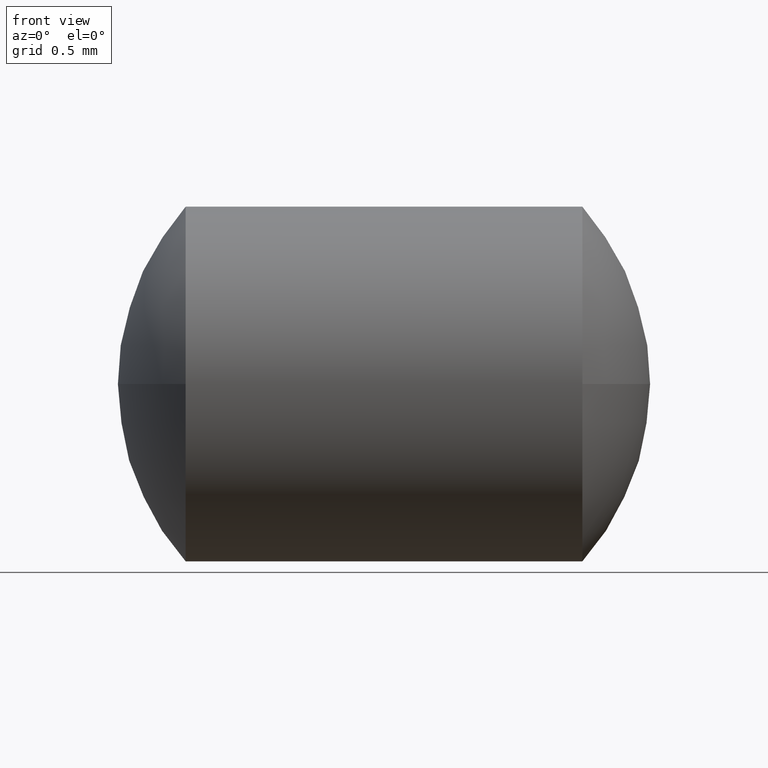
[diagram: clean part render]
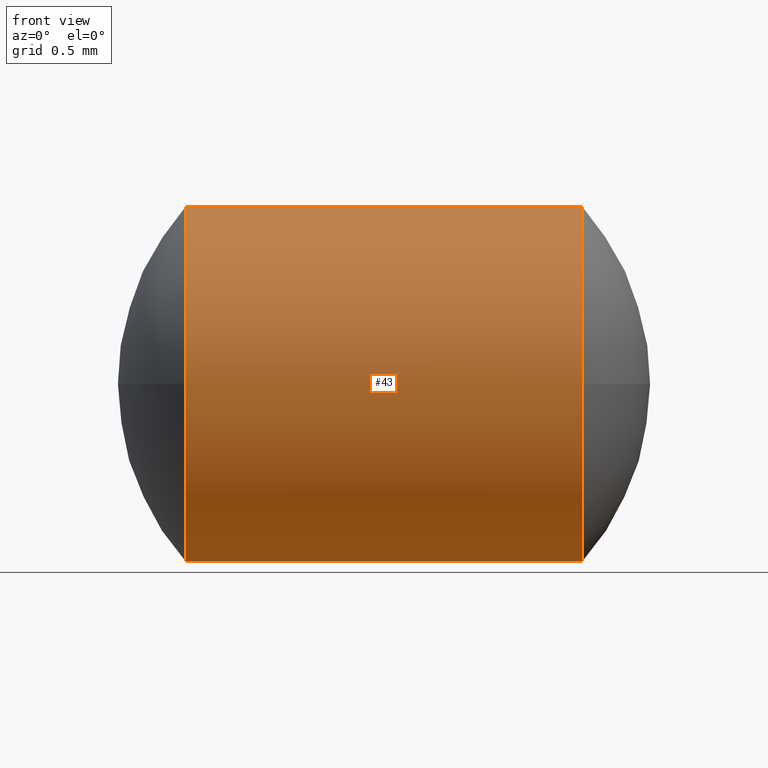
[diagram: same view with one face highlighted and labeled with its STEP entity id]
A machine part, front view. The second image highlights one B-rep face of the part: STEP entity #43.
In plain terms, the highlighted cylindrical surface (partial cylindrical patch) has radius 1 mm, axis along (-1, -0, -0).
Its self-contained STEP definition (entity closure, byte-faithful):
#3 = CARTESIAN_POINT ( 'NONE',  ( 232.2484920441100100, 133.3448637497280600, -1.000000000000000900 ) ) ;
#4 = VERTEX_POINT ( 'NONE', #209 ) ;
#8 = AXIS2_PLACEMENT_3D ( 'NONE', #252, #300, #326 ) ;
#11 = ORIENTED_EDGE ( 'NONE', *, *, #46, .T. ) ;
#23 = DIRECTION ( 'NONE',  ( 0.0000000000000000000, 0.0000000000000000000, 1.000000000000000000 ) ) ;
#43 = ADVANCED_FACE ( 'NONE', ( #313 ), #159, .T. ) ;
#46 = EDGE_CURVE ( 'NONE', #54, #264, #235, .T. ) ;
#54 = VERTEX_POINT ( 'NONE', #337 ) ;
#61 = CARTESIAN_POINT ( 'NONE',  ( 232.8719949570514700, 133.3448637497280600, 1.000000000000000900 ) ) ;
#63 = EDGE_CURVE ( 'NONE', #150, #4, #262, .T. ) ;
#83 = CARTESIAN_POINT ( 'NONE',  ( 232.8719949570514700, 132.3448637497280900, -1.224646799147344800E-016 ) ) ;
#86 = AXIS2_PLACEMENT_3D ( 'NONE', #187, #240, #23 ) ;
#89 = LINE ( 'NONE', #3, #286 ) ;
#95 = ORIENTED_EDGE ( 'NONE', *, *, #63, .T. ) ;
#98 = EDGE_CURVE ( 'NONE', #150, #331, #89, .T. ) ;
#104 = CARTESIAN_POINT ( 'NONE',  ( 235.1080629345512700, 133.3448637497280600, -1.000000000000000900 ) ) ;
#114 = ORIENTED_EDGE ( 'NONE', *, *, #189, .F. ) ;
#126 = ORIENTED_EDGE ( 'NONE', *, *, #229, .T. ) ;
#132 = AXIS2_PLACEMENT_3D ( 'NONE', #190, #294, #164 ) ;
#150 = VERTEX_POINT ( 'NONE', #104 ) ;
#156 = AXIS2_PLACEMENT_3D ( 'NONE', #288, #193, #291 ) ;
#159 = CYLINDRICAL_SURFACE ( 'NONE', #86, 1.000000000000000900 ) ;
#164 = DIRECTION ( 'NONE',  ( 0.0000000000000000000, 0.0000000000000000000, 1.000000000000000000 ) ) ;
#166 = CARTESIAN_POINT ( 'NONE',  ( 232.8719949570514700, 133.3448637497280600, -1.000000000000000900 ) ) ;
#187 = CARTESIAN_POINT ( 'NONE',  ( 232.2484920441100100, 133.3448637497280600, 0.0000000000000000000 ) ) ;
#189 = EDGE_CURVE ( 'NONE', #216, #264, #257, .T. ) ;
#190 = CARTESIAN_POINT ( 'NONE',  ( 235.1080629345512700, 133.3448637497280600, 0.0000000000000000000 ) ) ;
#193 = DIRECTION ( 'NONE',  ( -1.000000000000000000, -0.0000000000000000000, -0.0000000000000000000 ) ) ;
#194 = AXIS2_PLACEMENT_3D ( 'NONE', #289, #269, #219 ) ;
#200 = ORIENTED_EDGE ( 'NONE', *, *, #315, .F. ) ;
#205 = CIRCLE ( 'NONE', #8, 1.000000000000000900 ) ;
#209 = CARTESIAN_POINT ( 'NONE',  ( 235.1080629345512700, 132.3448637497280600, -1.224646799147354200E-016 ) ) ;
#216 = VERTEX_POINT ( 'NONE', #83 ) ;
#219 = DIRECTION ( 'NONE',  ( 0.0000000000000000000, 0.0000000000000000000, 1.000000000000000000 ) ) ;
#229 = EDGE_CURVE ( 'NONE', #4, #54, #340, .T. ) ;
#235 = LINE ( 'NONE', #314, #297 ) ;
#240 = DIRECTION ( 'NONE',  ( -1.000000000000000000, -0.0000000000000000000, -0.0000000000000000000 ) ) ;
#252 = CARTESIAN_POINT ( 'NONE',  ( 232.8719949570514700, 133.3448637497280600, 0.0000000000000000000 ) ) ;
#256 = EDGE_LOOP ( 'NONE', ( #272, #95, #126, #11, #114, #200 ) ) ;
#257 = CIRCLE ( 'NONE', #156, 1.000000000000000900 ) ;
#262 = CIRCLE ( 'NONE', #132, 1.000000000000000900 ) ;
#264 = VERTEX_POINT ( 'NONE', #61 ) ;
#266 = DIRECTION ( 'NONE',  ( -1.000000000000000000, -0.0000000000000000000, -0.0000000000000000000 ) ) ;
#269 = DIRECTION ( 'NONE',  ( -1.000000000000000000, -0.0000000000000000000, -0.0000000000000000000 ) ) ;
#272 = ORIENTED_EDGE ( 'NONE', *, *, #98, .F. ) ;
#286 = VECTOR ( 'NONE', #316, 1000.000000000000000 ) ;
#288 = CARTESIAN_POINT ( 'NONE',  ( 232.8719949570514700, 133.3448637497280600, 0.0000000000000000000 ) ) ;
#289 = CARTESIAN_POINT ( 'NONE',  ( 235.1080629345512700, 133.3448637497280600, 0.0000000000000000000 ) ) ;
#291 = DIRECTION ( 'NONE',  ( 0.0000000000000000000, 0.0000000000000000000, 1.000000000000000000 ) ) ;
#294 = DIRECTION ( 'NONE',  ( -1.000000000000000000, -0.0000000000000000000, -0.0000000000000000000 ) ) ;
#297 = VECTOR ( 'NONE', #266, 1000.000000000000000 ) ;
#300 = DIRECTION ( 'NONE',  ( -1.000000000000000000, -0.0000000000000000000, -0.0000000000000000000 ) ) ;
#313 = FACE_OUTER_BOUND ( 'NONE', #256, .T. ) ;
#314 = CARTESIAN_POINT ( 'NONE',  ( 232.2484920441100100, 133.3448637497280600, 1.000000000000000900 ) ) ;
#315 = EDGE_CURVE ( 'NONE', #331, #216, #205, .T. ) ;
#316 = DIRECTION ( 'NONE',  ( -1.000000000000000000, -0.0000000000000000000, -0.0000000000000000000 ) ) ;
#326 = DIRECTION ( 'NONE',  ( 0.0000000000000000000, 0.0000000000000000000, 1.000000000000000000 ) ) ;
#331 = VERTEX_POINT ( 'NONE', #166 ) ;
#337 = CARTESIAN_POINT ( 'NONE',  ( 235.1080629345512700, 133.3448637497280600, 1.000000000000000900 ) ) ;
#340 = CIRCLE ( 'NONE', #194, 1.000000000000000900 ) ;